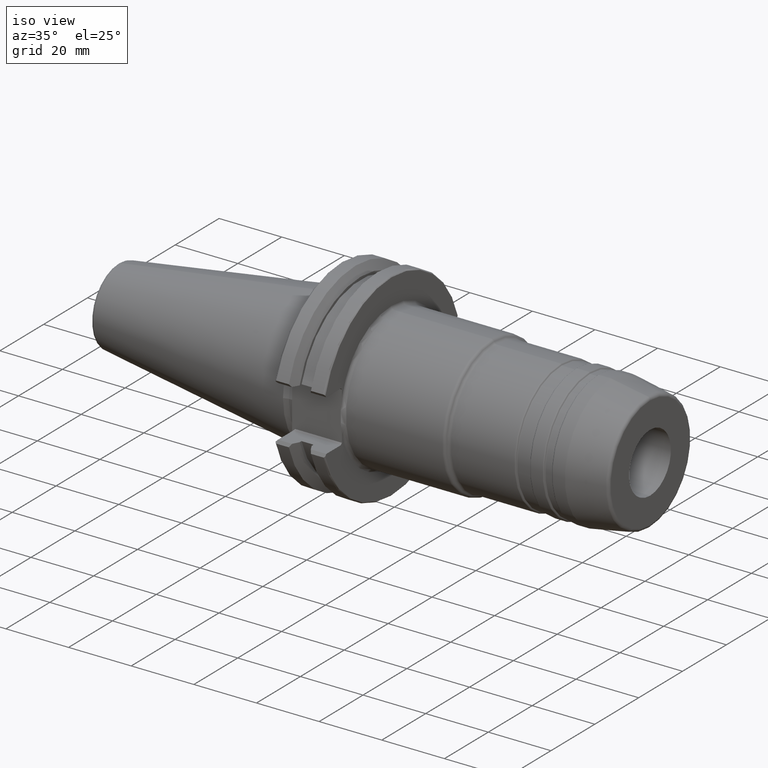
[diagram: clean part render]
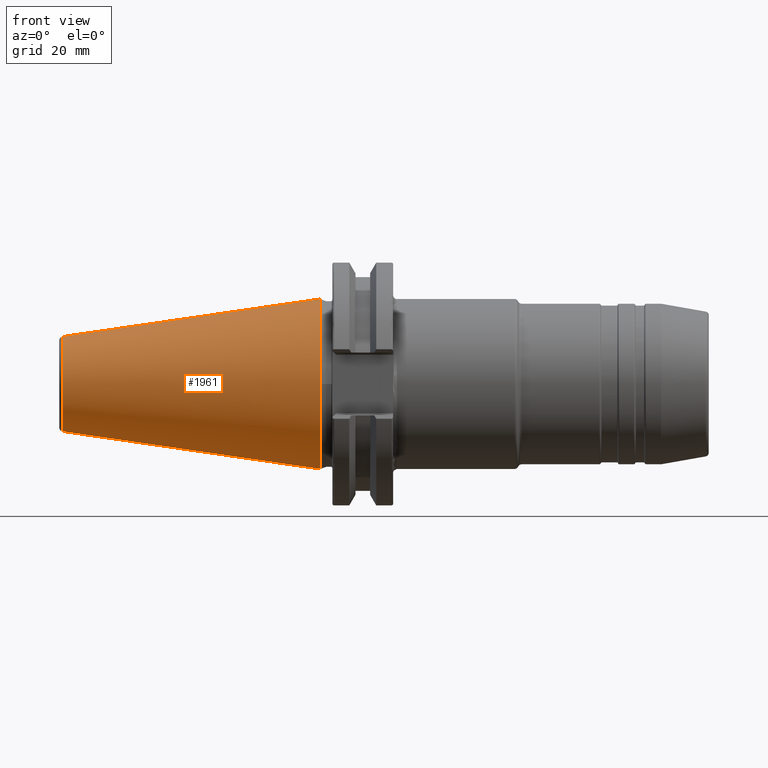
[diagram: tour spotlight — one face highlighted and labeled with its STEP entity id]
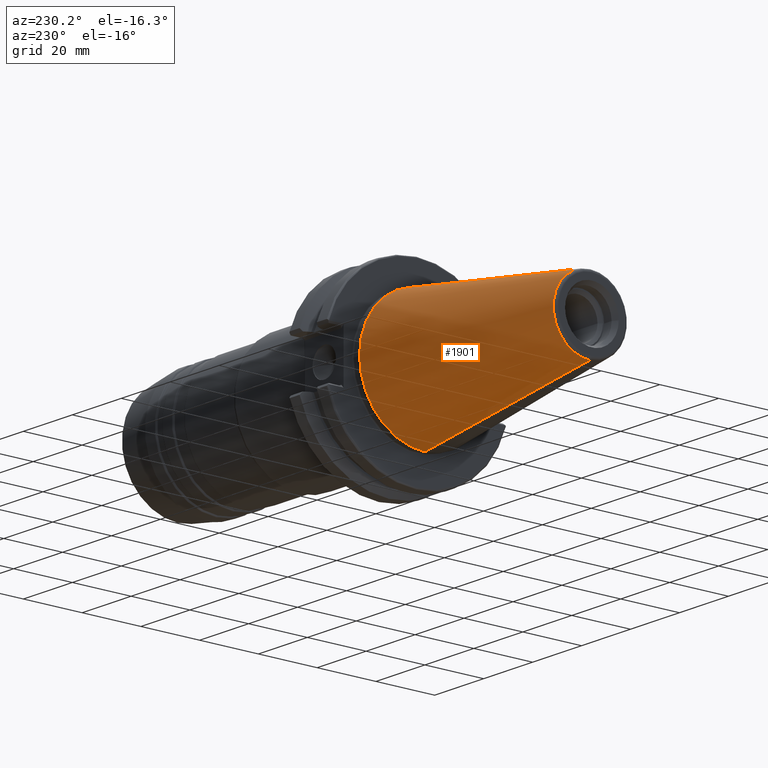
[diagram: tour spotlight — one face highlighted and labeled with its STEP entity id]
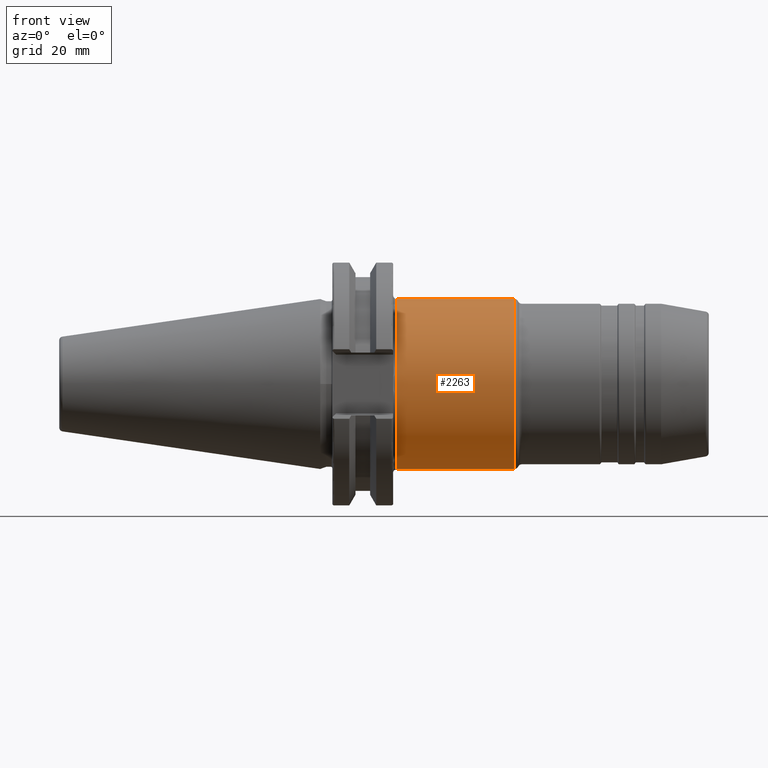
[diagram: tour spotlight — one face highlighted and labeled with its STEP entity id]
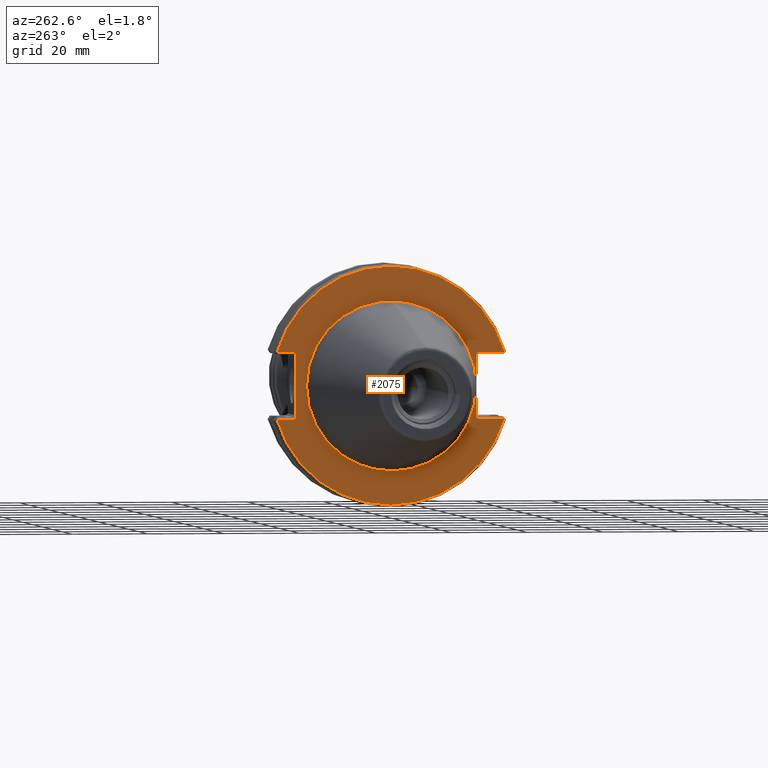
[diagram: tour spotlight — one face highlighted and labeled with its STEP entity id]
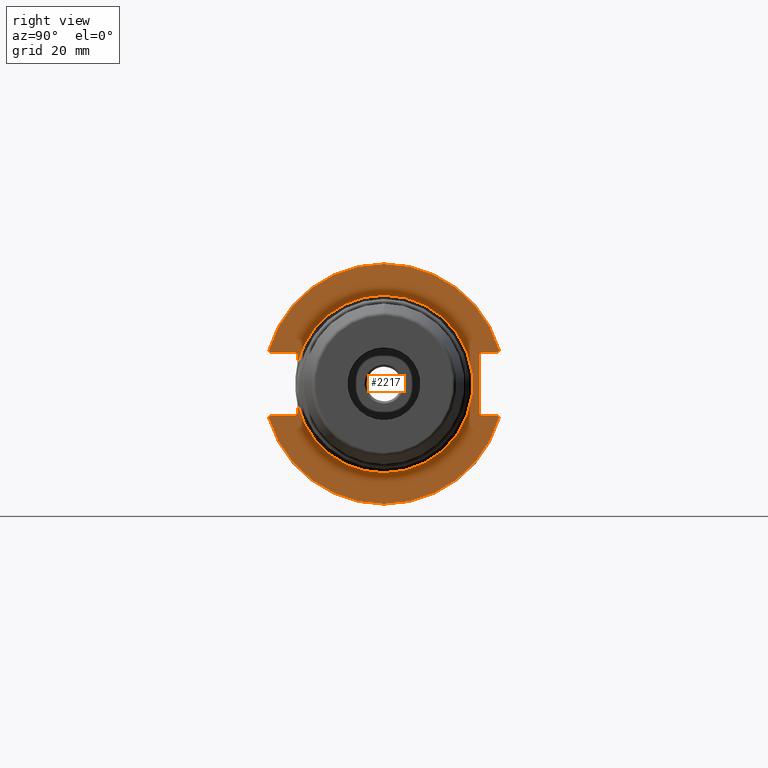
[diagram: tour spotlight — one face highlighted and labeled with its STEP entity id]
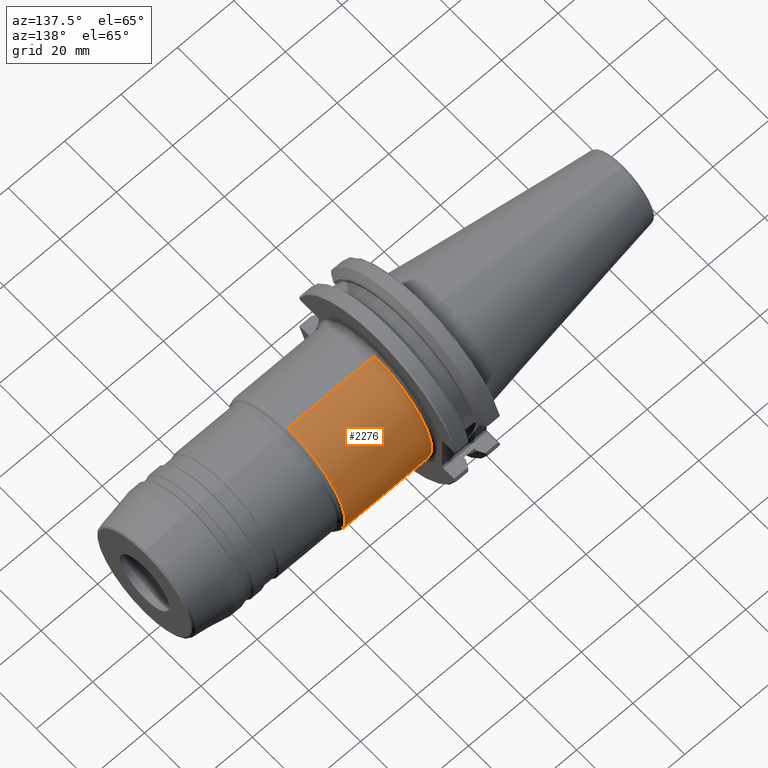
[diagram: tour spotlight — one face highlighted and labeled with its STEP entity id]
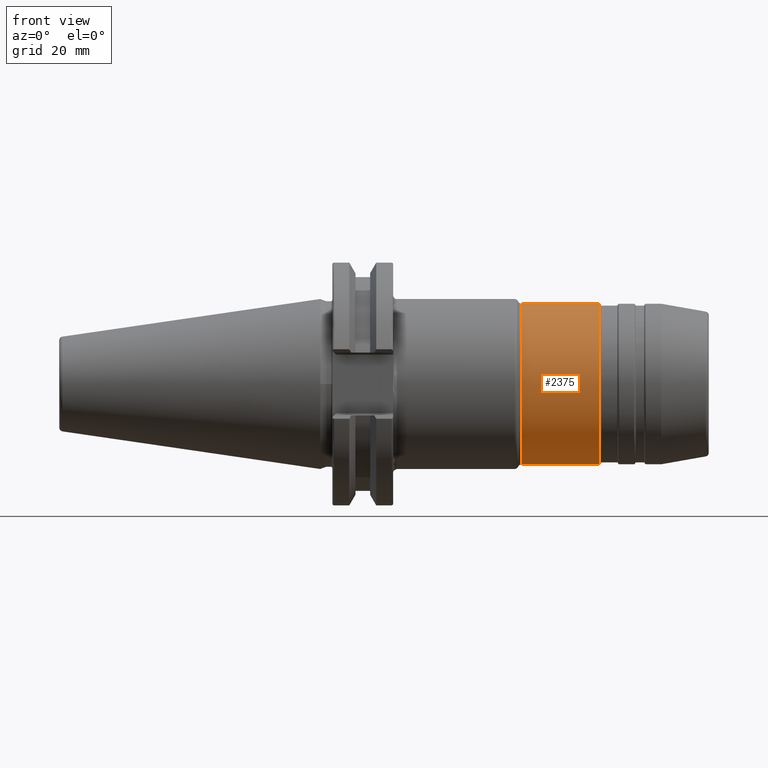
[diagram: tour spotlight — one face highlighted and labeled with its STEP entity id]
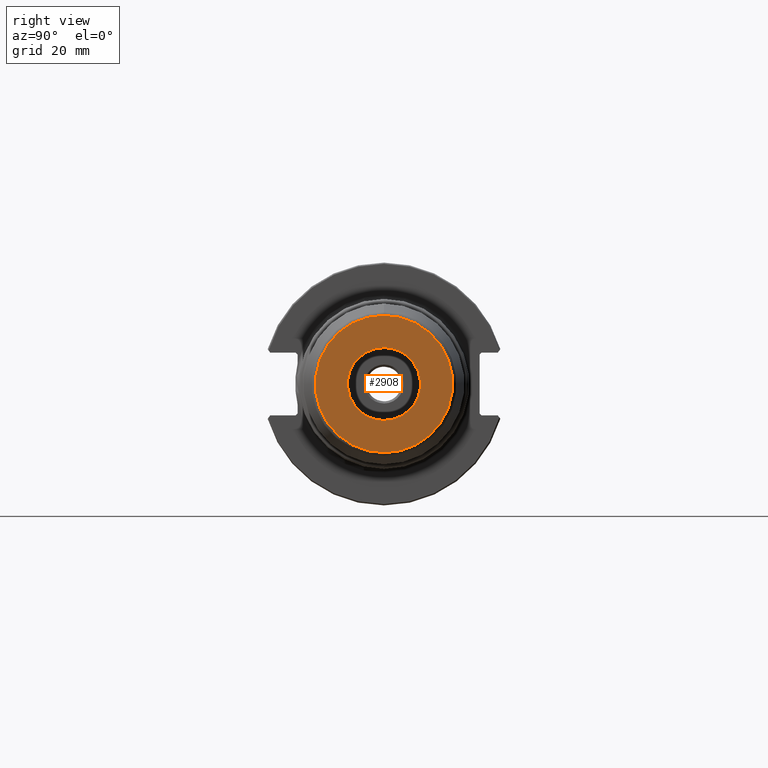
[diagram: tour spotlight — one face highlighted and labeled with its STEP entity id]
A machine part: a face-by-face anatomy tour. The part has 139 B-rep faces; the first image is the clean iso view, then the 8 largest visible faces are spotlighted one at a time (largest first), each with its STEP entity span.

Face 1 — front view, entity #1961. In plain terms, the highlighted conical surface has half-angle 8.297 deg.
Definition (entity closure, byte-faithful):
#47=CARTESIAN_POINT('',(-6.739430689359E1,0.E0,0.E0));
#48=DIRECTION('',(-1.E0,0.E0,0.E0));
#49=DIRECTION('',(0.E0,0.E0,-1.E0));
#50=AXIS2_PLACEMENT_3D('',#47,#48,#49);
#52=DIRECTION('',(-9.895329809873E-1,-1.311327178365E-12,-1.443068935927E-1));
#53=VECTOR('',#52,6.810718610546E1);
#54=CARTESIAN_POINT('',(0.E0,0.E0,2.2225E1));
#55=LINE('',#54,#53);
#56=CARTESIAN_POINT('',(2.557953848736E-13,0.E0,0.E0));
#57=DIRECTION('',(1.E0,0.E0,0.E0));
#58=DIRECTION('',(0.E0,0.E0,1.E0));
#59=AXIS2_PLACEMENT_3D('',#56,#57,#58);
#61=CARTESIAN_POINT('',(-2.842170943040E-14,0.E0,0.E0));
#62=DIRECTION('',(1.E0,0.E0,0.E0));
#63=DIRECTION('',(0.E0,-1.E0,0.E0));
#64=AXIS2_PLACEMENT_3D('',#61,#62,#63);
#66=DIRECTION('',(-9.895329809873E-1,1.311286176267E-12,1.443068935927E-1));
#67=VECTOR('',#66,6.810718610546E1);
#68=CARTESIAN_POINT('',(0.E0,0.E0,-2.2225E1));
#69=LINE('',#68,#67);
#1596=CARTESIAN_POINT('',(-6.739430689359E1,0.E0,-1.239666354178E1));
#1597=CARTESIAN_POINT('',(-6.739430689359E1,0.E0,1.239666354178E1));
#1598=VERTEX_POINT('',#1596);
#1599=VERTEX_POINT('',#1597);
#1612=CARTESIAN_POINT('',(0.E0,-2.2225E1,-1.633863832385E-8));
#1613=VERTEX_POINT('',#1612);
#1616=CARTESIAN_POINT('',(2.557953848736E-13,0.E0,2.2225E1));
#1617=VERTEX_POINT('',#1616);
#1618=CARTESIAN_POINT('',(-2.842170943040E-14,0.E0,-2.2225E1));
#1619=VERTEX_POINT('',#1618);
#1947=CARTESIAN_POINT('',(-3.369715344680E1,0.E0,0.E0));
#1948=DIRECTION('',(1.E0,0.E0,0.E0));
#1949=DIRECTION('',(0.E0,0.E0,1.E0));
#1950=AXIS2_PLACEMENT_3D('',#1947,#1948,#1949);
#1951=CONICAL_SURFACE('',#1950,1.731083177089E1,8.297145E0);
#1952=ORIENTED_EDGE('',*,*,#1941,.T.);
#1953=ORIENTED_EDGE('',*,*,#1897,.F.);
#1955=ORIENTED_EDGE('',*,*,#1954,.T.);
#1957=ORIENTED_EDGE('',*,*,#1956,.T.);
#1958=ORIENTED_EDGE('',*,*,#1891,.T.);
#1959=EDGE_LOOP('',(#1952,#1953,#1955,#1957,#1958));
#1960=FACE_OUTER_BOUND('',#1959,.F.);
#1961=ADVANCED_FACE('',(#1960),#1951,.T.);
#51=CIRCLE('',#50,1.239666354178E1);
#60=CIRCLE('',#59,2.2225E1);
#65=CIRCLE('',#64,2.2225E1);
#1891=EDGE_CURVE('',#1619,#1598,#69,.T.);
#1897=EDGE_CURVE('',#1617,#1599,#55,.T.);
#1941=EDGE_CURVE('',#1598,#1599,#51,.T.);
#1954=EDGE_CURVE('',#1617,#1613,#60,.T.);
#1956=EDGE_CURVE('',#1613,#1619,#65,.T.);

Face 2 — auxiliary view, entity #1901. In plain terms, the highlighted conical surface has half-angle 8.297 deg.
Definition (entity closure, byte-faithful):
#2=CARTESIAN_POINT('',(-6.739430689359E1,0.E0,0.E0));
#3=DIRECTION('',(-1.E0,0.E0,0.E0));
#4=DIRECTION('',(0.E0,0.E0,1.E0));
#5=AXIS2_PLACEMENT_3D('',#2,#3,#4);
#7=CARTESIAN_POINT('',(-2.842170943040E-14,0.E0,0.E0));
#8=DIRECTION('',(1.E0,0.E0,0.E0));
#9=DIRECTION('',(0.E0,0.E0,-1.E0));
#10=AXIS2_PLACEMENT_3D('',#7,#8,#9);
#12=CARTESIAN_POINT('',(2.557953848736E-13,0.E0,0.E0));
#13=DIRECTION('',(1.E0,0.E0,0.E0));
#14=DIRECTION('',(0.E0,1.E0,0.E0));
#15=AXIS2_PLACEMENT_3D('',#12,#13,#14);
#52=DIRECTION('',(-9.895329809873E-1,-1.311327178365E-12,-1.443068935927E-1));
#53=VECTOR('',#52,6.810718610546E1);
#54=CARTESIAN_POINT('',(0.E0,0.E0,2.2225E1));
#55=LINE('',#54,#53);
#66=DIRECTION('',(-9.895329809873E-1,1.311286176267E-12,1.443068935927E-1));
#67=VECTOR('',#66,6.810718610546E1);
#68=CARTESIAN_POINT('',(0.E0,0.E0,-2.2225E1));
#69=LINE('',#68,#67);
#1596=CARTESIAN_POINT('',(-6.739430689359E1,0.E0,-1.239666354178E1));
#1597=CARTESIAN_POINT('',(-6.739430689359E1,0.E0,1.239666354178E1));
#1598=VERTEX_POINT('',#1596);
#1599=VERTEX_POINT('',#1597);
#1614=CARTESIAN_POINT('',(0.E0,2.2225E1,1.633863672682E-8));
#1615=VERTEX_POINT('',#1614);
#1616=CARTESIAN_POINT('',(2.557953848736E-13,0.E0,2.2225E1));
#1617=VERTEX_POINT('',#1616);
#1618=CARTESIAN_POINT('',(-2.842170943040E-14,0.E0,-2.2225E1));
#1619=VERTEX_POINT('',#1618);
#1884=CARTESIAN_POINT('',(-3.369715344680E1,0.E0,0.E0));
#1885=DIRECTION('',(1.E0,0.E0,0.E0));
#1886=DIRECTION('',(0.E0,0.E0,1.E0));
#1887=AXIS2_PLACEMENT_3D('',#1884,#1885,#1886);
#1888=CONICAL_SURFACE('',#1887,1.731083177089E1,8.297145E0);
#1890=ORIENTED_EDGE('',*,*,#1889,.T.);
#1892=ORIENTED_EDGE('',*,*,#1891,.F.);
#1894=ORIENTED_EDGE('',*,*,#1893,.T.);
#1896=ORIENTED_EDGE('',*,*,#1895,.T.);
#1898=ORIENTED_EDGE('',*,*,#1897,.T.);
#1899=EDGE_LOOP('',(#1890,#1892,#1894,#1896,#1898));
#1900=FACE_OUTER_BOUND('',#1899,.F.);
#1901=ADVANCED_FACE('',(#1900),#1888,.T.);
#6=CIRCLE('',#5,1.239666354178E1);
#11=CIRCLE('',#10,2.2225E1);
#16=CIRCLE('',#15,2.2225E1);
#1889=EDGE_CURVE('',#1599,#1598,#6,.T.);
#1891=EDGE_CURVE('',#1619,#1598,#69,.T.);
#1893=EDGE_CURVE('',#1619,#1615,#11,.T.);
#1895=EDGE_CURVE('',#1615,#1617,#16,.T.);
#1897=EDGE_CURVE('',#1617,#1599,#55,.T.);

Face 3 — front view, entity #2263. In plain terms, the highlighted cylindrical surface (partial cylindrical patch) has radius 22.225 mm, axis along (1, 0, 0).
Definition (entity closure, byte-faithful):
#227=CARTESIAN_POINT('',(2.0075E1,0.E0,0.E0));
#228=DIRECTION('',(-1.E0,0.E0,0.E0));
#229=DIRECTION('',(0.E0,0.E0,-1.E0));
#230=AXIS2_PLACEMENT_3D('',#227,#228,#229);
#237=DIRECTION('',(-1.E0,0.E0,0.E0));
#238=VECTOR('',#237,3.076539565105E1);
#239=CARTESIAN_POINT('',(5.084039565105E1,0.E0,-2.2225E1));
#240=LINE('',#239,#238);
#241=DIRECTION('',(-1.E0,0.E0,0.E0));
#242=VECTOR('',#241,3.076539565105E1);
#243=CARTESIAN_POINT('',(5.084039565105E1,0.E0,2.2225E1));
#244=LINE('',#243,#242);
#245=CARTESIAN_POINT('',(5.084039565105E1,0.E0,0.E0));
#246=DIRECTION('',(-1.E0,0.E0,0.E0));
#247=DIRECTION('',(0.E0,0.E0,-1.E0));
#248=AXIS2_PLACEMENT_3D('',#245,#246,#247);
#1802=CARTESIAN_POINT('',(5.084039565105E1,0.E0,-2.2225E1));
#1803=VERTEX_POINT('',#1802);
#1804=CARTESIAN_POINT('',(2.0075E1,0.E0,-2.2225E1));
#1805=VERTEX_POINT('',#1804);
#1864=CARTESIAN_POINT('',(5.084039565105E1,0.E0,2.2225E1));
#1865=VERTEX_POINT('',#1864);
#1866=CARTESIAN_POINT('',(2.0075E1,0.E0,2.2225E1));
#1867=VERTEX_POINT('',#1866);
#2249=CARTESIAN_POINT('',(1.49475E1,0.E0,0.E0));
#2250=DIRECTION('',(1.E0,0.E0,0.E0));
#2251=DIRECTION('',(0.E0,0.E0,1.E0));
#2252=AXIS2_PLACEMENT_3D('',#2249,#2250,#2251);
#2253=CYLINDRICAL_SURFACE('',#2252,2.2225E1);
#2255=ORIENTED_EDGE('',*,*,#2254,.T.);
#2256=ORIENTED_EDGE('',*,*,#2240,.T.);
#2258=ORIENTED_EDGE('',*,*,#2257,.F.);
#2260=ORIENTED_EDGE('',*,*,#2259,.F.);
#2261=EDGE_LOOP('',(#2255,#2256,#2258,#2260));
#2262=FACE_OUTER_BOUND('',#2261,.F.);
#2263=ADVANCED_FACE('',(#2262),#2253,.T.);
#231=CIRCLE('',#230,2.2225E1);
#249=CIRCLE('',#248,2.2225E1);
#2240=EDGE_CURVE('',#1805,#1867,#231,.T.);
#2254=EDGE_CURVE('',#1803,#1805,#240,.T.);
#2257=EDGE_CURVE('',#1865,#1867,#244,.T.);
#2259=EDGE_CURVE('',#1803,#1865,#249,.T.);

Face 4 — auxiliary view, entity #2075. In plain terms, the highlighted planar face has unit normal (1, 0, 0).
Definition (entity closure, byte-faithful):
#116=CARTESIAN_POINT('',(3.175E0,0.E0,0.E0));
#117=DIRECTION('',(1.E0,0.E0,0.E0));
#118=DIRECTION('',(0.E0,1.E0,0.E0));
#119=AXIS2_PLACEMENT_3D('',#116,#117,#118);
#121=CARTESIAN_POINT('',(3.175E0,0.E0,0.E0));
#122=DIRECTION('',(1.E0,0.E0,0.E0));
#123=DIRECTION('',(0.E0,-1.E0,0.E0));
#124=AXIS2_PLACEMENT_3D('',#121,#122,#123);
#126=DIRECTION('',(-4.416490716681E-7,-9.999999999998E-1,-4.416327437506E-7));
#127=VECTOR('',#126,5.017433816154E0);
#128=CARTESIAN_POINT('',(3.175002215945E0,3.001743381615E1,8.690002215863E0));
#129=LINE('',#128,#127);
#130=DIRECTION('',(2.987481982108E-7,-9.999999999999E-1,2.987371537468E-7));
#131=VECTOR('',#130,7.417433816239E0);
#132=CARTESIAN_POINT('',(3.175E0,-2.26E1,8.69E0));
#133=LINE('',#132,#131);
#134=DIRECTION('',(-2.987481980911E-7,9.999999999999E-1,2.987371530284E-7));
#135=VECTOR('',#134,7.417433816238E0);
#136=CARTESIAN_POINT('',(3.175002215945E0,-3.001743381624E1,-8.690002215863E0));
#137=LINE('',#136,#135);
#138=DIRECTION('',(4.416490717585E-7,9.999999999998E-1,-4.416327437526E-7));
#139=VECTOR('',#138,5.017433816133E0);
#140=CARTESIAN_POINT('',(3.175E0,2.5E1,-8.69E0));
#141=LINE('',#140,#139);
#168=DIRECTION('',(0.E0,0.E0,-1.E0));
#169=VECTOR('',#168,1.738E1);
#170=CARTESIAN_POINT('',(3.175E0,2.5E1,8.69E0));
#171=LINE('',#170,#169);
#920=DIRECTION('',(0.E0,0.E0,1.E0));
#921=VECTOR('',#920,1.738E1);
#922=CARTESIAN_POINT('',(3.175E0,-2.26E1,-8.69E0));
#923=LINE('',#922,#921);
#1046=CARTESIAN_POINT('',(3.175E0,0.E0,0.E0));
#1047=DIRECTION('',(-1.E0,0.E0,0.E0));
#1048=DIRECTION('',(0.E0,9.605579196518E-1,-2.780799938762E-1));
#1049=AXIS2_PLACEMENT_3D('',#1046,#1047,#1048);
#1118=CARTESIAN_POINT('',(3.175E0,0.E0,0.E0));
#1119=DIRECTION('',(-1.E0,0.E0,0.E0));
#1120=DIRECTION('',(0.E0,-9.605579196529E-1,2.780799938725E-1));
#1121=AXIS2_PLACEMENT_3D('',#1118,#1119,#1120);
#1604=CARTESIAN_POINT('',(3.175E0,2.22E1,0.E0));
#1605=CARTESIAN_POINT('',(3.175E0,-2.22E1,0.E0));
#1606=VERTEX_POINT('',#1604);
#1607=VERTEX_POINT('',#1605);
#1660=CARTESIAN_POINT('',(3.175002215945E0,3.001743381615E1,8.690002215863E0));
#1661=CARTESIAN_POINT('',(3.175E0,2.5E1,8.69E0));
#1662=VERTEX_POINT('',#1660);
#1663=VERTEX_POINT('',#1661);
#1668=CARTESIAN_POINT('',(3.175E0,2.5E1,-8.69E0));
#1669=CARTESIAN_POINT('',(3.175002215945E0,3.001743381613E1,-8.690002215863E0));
#1670=VERTEX_POINT('',#1668);
#1671=VERTEX_POINT('',#1669);
#1676=CARTESIAN_POINT('',(3.175E0,-2.26E1,8.69E0));
#1677=CARTESIAN_POINT('',(3.175002215945E0,-3.001743381624E1,8.690002215863E0));
#1678=VERTEX_POINT('',#1676);
#1679=VERTEX_POINT('',#1677);
#1684=CARTESIAN_POINT('',(3.175002215945E0,-3.001743381624E1,
-8.690002215863E0));
#1685=CARTESIAN_POINT('',(3.175E0,-2.26E1,-8.69E0));
#1686=VERTEX_POINT('',#1684);
#1687=VERTEX_POINT('',#1685);
#2048=CARTESIAN_POINT('',(3.175E0,0.E0,0.E0));
#2049=DIRECTION('',(1.E0,0.E0,0.E0));
#2050=DIRECTION('',(0.E0,0.E0,1.E0));
#2051=AXIS2_PLACEMENT_3D('',#2048,#2049,#2050);
#2052=PLANE('',#2051);
#2054=ORIENTED_EDGE('',*,*,#2053,.F.);
#2056=ORIENTED_EDGE('',*,*,#2055,.F.);
#2058=ORIENTED_EDGE('',*,*,#2057,.F.);
#2060=ORIENTED_EDGE('',*,*,#2059,.F.);
#2062=ORIENTED_EDGE('',*,*,#2061,.F.);
#2064=ORIENTED_EDGE('',*,*,#2063,.F.);
#2066=ORIENTED_EDGE('',*,*,#2065,.F.);
#2068=ORIENTED_EDGE('',*,*,#2067,.F.);
#2069=EDGE_LOOP('',(#2054,#2056,#2058,#2060,#2062,#2064,#2066,#2068));
#2070=FACE_OUTER_BOUND('',#2069,.F.);
#2071=ORIENTED_EDGE('',*,*,#2001,.F.);
#2072=ORIENTED_EDGE('',*,*,#2016,.F.);
#2073=EDGE_LOOP('',(#2071,#2072));
#2074=FACE_BOUND('',#2073,.F.);
#2075=ADVANCED_FACE('',(#2070,#2074),#2052,.F.);
#120=CIRCLE('',#119,2.22E1);
#125=CIRCLE('',#124,2.22E1);
#1050=CIRCLE('',#1049,3.125E1);
#1122=CIRCLE('',#1121,3.125E1);
#2001=EDGE_CURVE('',#1606,#1607,#120,.T.);
#2016=EDGE_CURVE('',#1607,#1606,#125,.T.);
#2053=EDGE_CURVE('',#1662,#1663,#129,.T.);
#2055=EDGE_CURVE('',#1679,#1662,#1122,.T.);
#2057=EDGE_CURVE('',#1678,#1679,#133,.T.);
#2059=EDGE_CURVE('',#1687,#1678,#923,.T.);
#2061=EDGE_CURVE('',#1686,#1687,#137,.T.);
#2063=EDGE_CURVE('',#1671,#1686,#1050,.T.);
#2065=EDGE_CURVE('',#1670,#1671,#141,.T.);
#2067=EDGE_CURVE('',#1663,#1670,#171,.T.);

Face 5 — right view, entity #2217. In plain terms, the highlighted planar face has unit normal (-1, 0, 0).
Definition (entity closure, byte-faithful):
#160=DIRECTION('',(0.E0,0.E0,-1.E0));
#161=VECTOR('',#160,1.538E1);
#162=CARTESIAN_POINT('',(1.9075E1,2.5E1,7.69E0));
#163=LINE('',#162,#161);
#202=CARTESIAN_POINT('',(1.9075E1,0.E0,0.E0));
#203=DIRECTION('',(1.E0,0.E0,0.E0));
#204=DIRECTION('',(0.E0,0.E0,-1.E0));
#205=AXIS2_PLACEMENT_3D('',#202,#203,#204);
#207=CARTESIAN_POINT('',(1.9075E1,0.E0,0.E0));
#208=DIRECTION('',(1.E0,0.E0,0.E0));
#209=DIRECTION('',(0.E0,0.E0,1.E0));
#210=AXIS2_PLACEMENT_3D('',#207,#208,#209);
#212=CARTESIAN_POINT('',(1.9075E1,0.E0,0.E0));
#213=DIRECTION('',(1.E0,0.E0,0.E0));
#214=DIRECTION('',(0.E0,-9.730893433800E-1,-2.304281445491E-1));
#215=AXIS2_PLACEMENT_3D('',#212,#213,#214);
#912=DIRECTION('',(3.950318825048E-14,0.E0,-1.E0));
#913=VECTOR('',#912,2.338306342848E0);
#914=CARTESIAN_POINT('',(1.9075E1,-2.26E1,-5.351693657152E0));
#915=LINE('',#914,#913);
#928=DIRECTION('',(-4.102254164473E-14,0.E0,-1.E0));
#929=VECTOR('',#928,2.338306342848E0);
#930=CARTESIAN_POINT('',(1.9075E1,-2.26E1,7.69E0));
#931=LINE('',#930,#929);
#932=DIRECTION('',(0.E0,-7.071067811865E-1,-7.071067811865E-1));
#933=VECTOR('',#932,7.071067811865E-1);
#934=CARTESIAN_POINT('',(1.9075E1,-2.26E1,-7.69E0));
#935=LINE('',#934,#933);
#940=DIRECTION('',(0.E0,1.E0,0.E0));
#941=VECTOR('',#940,6.650132772813E0);
#942=CARTESIAN_POINT('',(1.9075E1,-2.975013277281E1,-8.19E0));
#943=LINE('',#942,#941);
#960=DIRECTION('',(0.E0,-5.973640433789E-1,-8.019701987468E-1));
#961=VECTOR('',#960,6.967374391763E-1);
#962=CARTESIAN_POINT('',(1.9075E1,-2.975013277281E1,-8.19E0));
#963=LINE('',#962,#961);
#971=CARTESIAN_POINT('',(1.9075E1,0.E0,0.E0));
#972=DIRECTION('',(1.E0,0.E0,0.E0));
#973=DIRECTION('',(0.E0,-9.604246720989E-1,-2.785398521286E-1));
#974=AXIS2_PLACEMENT_3D('',#971,#972,#973);
#993=DIRECTION('',(0.E0,-5.973640433790E-1,8.019701987468E-1));
#994=VECTOR('',#993,6.967374391763E-1);
#995=CARTESIAN_POINT('',(1.9075E1,3.016633866665E1,-8.748762662571E0));
#996=LINE('',#995,#994);
#1004=DIRECTION('',(0.E0,1.E0,0.E0));
#1005=VECTOR('',#1004,4.250132772813E0);
#1006=CARTESIAN_POINT('',(1.9075E1,2.55E1,-8.19E0));
#1007=LINE('',#1006,#1005);
#1024=DIRECTION('',(0.E0,7.071067811865E-1,-7.071067811866E-1));
#1025=VECTOR('',#1024,7.071067811866E-1);
#1026=CARTESIAN_POINT('',(1.9075E1,2.5E1,-7.69E0));
#1027=LINE('',#1026,#1025);
#1160=DIRECTION('',(0.E0,1.E0,0.E0));
#1161=VECTOR('',#1160,6.650132772813E0);
#1162=CARTESIAN_POINT('',(1.9075E1,-2.975013277281E1,8.19E0));
#1163=LINE('',#1162,#1161);
#1180=DIRECTION('',(0.E0,-7.071067811865E-1,7.071067811865E-1));
#1181=VECTOR('',#1180,7.071067811865E-1);
#1182=CARTESIAN_POINT('',(1.9075E1,-2.26E1,7.69E0));
#1183=LINE('',#1182,#1181);
#1278=DIRECTION('',(0.E0,1.E0,0.E0));
#1279=VECTOR('',#1278,4.250132772813E0);
#1280=CARTESIAN_POINT('',(1.9075E1,2.55E1,8.19E0));
#1281=LINE('',#1280,#1279);
#1298=DIRECTION('',(0.E0,5.973640433790E-1,8.019701987468E-1));
#1299=VECTOR('',#1298,6.967374391763E-1);
#1300=CARTESIAN_POINT('',(1.9075E1,2.975013277281E1,8.19E0));
#1301=LINE('',#1300,#1299);
#1309=CARTESIAN_POINT('',(1.9075E1,0.E0,0.E0));
#1310=DIRECTION('',(1.E0,0.E0,0.E0));
#1311=DIRECTION('',(0.E0,9.604246720989E-1,2.785398521286E-1));
#1312=AXIS2_PLACEMENT_3D('',#1309,#1310,#1311);
#1331=DIRECTION('',(0.E0,5.973640433790E-1,-8.019701987468E-1));
#1332=VECTOR('',#1331,6.967374391763E-1);
#1333=CARTESIAN_POINT('',(1.9075E1,-3.016633866665E1,8.748762662571E0));
#1334=LINE('',#1333,#1332);
#1487=DIRECTION('',(0.E0,7.071067811865E-1,7.071067811865E-1));
#1488=VECTOR('',#1487,7.071067811865E-1);
#1489=CARTESIAN_POINT('',(1.9075E1,2.5E1,7.69E0));
#1490=LINE('',#1489,#1488);
#1708=CARTESIAN_POINT('',(1.9075E1,2.5E1,7.69E0));
#1709=CARTESIAN_POINT('',(1.9075E1,2.5E1,-7.69E0));
#1710=VERTEX_POINT('',#1708);
#1711=VERTEX_POINT('',#1709);
#1712=CARTESIAN_POINT('',(1.9075E1,2.55E1,8.19E0));
#1713=CARTESIAN_POINT('',(1.9075E1,2.975013277281E1,8.19E0));
#1714=VERTEX_POINT('',#1712);
#1715=VERTEX_POINT('',#1713);
#1716=CARTESIAN_POINT('',(1.9075E1,2.55E1,-8.19E0));
#1717=CARTESIAN_POINT('',(1.9075E1,2.975013277281E1,-8.19E0));
#1718=VERTEX_POINT('',#1716);
#1719=VERTEX_POINT('',#1717);
#1720=CARTESIAN_POINT('',(1.9075E1,-2.975013277281E1,8.19E0));
#1721=CARTESIAN_POINT('',(1.9075E1,-2.31E1,8.19E0));
#1722=VERTEX_POINT('',#1720);
#1723=VERTEX_POINT('',#1721);
#1724=CARTESIAN_POINT('',(1.9075E1,-2.975013277281E1,-8.19E0));
#1725=CARTESIAN_POINT('',(1.9075E1,-2.31E1,-8.19E0));
#1726=VERTEX_POINT('',#1724);
#1727=VERTEX_POINT('',#1725);
#1728=CARTESIAN_POINT('',(1.9075E1,3.016633866665E1,8.748762662570E0));
#1729=VERTEX_POINT('',#1728);
#1730=CARTESIAN_POINT('',(1.9075E1,3.016633866665E1,-8.748762662571E0));
#1731=VERTEX_POINT('',#1730);
#1732=CARTESIAN_POINT('',(1.9075E1,-3.016633866665E1,8.748762662571E0));
#1733=VERTEX_POINT('',#1732);
#1734=CARTESIAN_POINT('',(1.9075E1,-3.016633866665E1,-8.748762662571E0));
#1735=VERTEX_POINT('',#1734);
#1736=CARTESIAN_POINT('',(1.9075E1,-2.26E1,-7.69E0));
#1737=VERTEX_POINT('',#1736);
#1738=CARTESIAN_POINT('',(1.9075E1,-2.26E1,7.69E0));
#1739=VERTEX_POINT('',#1738);
#1868=CARTESIAN_POINT('',(1.9075E1,-2.26E1,5.351693657152E0));
#1869=CARTESIAN_POINT('',(1.9075E1,-2.26E1,-5.351693657152E0));
#1870=VERTEX_POINT('',#1868);
#1871=VERTEX_POINT('',#1869);
#1876=CARTESIAN_POINT('',(1.9075E1,0.E0,-2.3225E1));
#1877=CARTESIAN_POINT('',(1.9075E1,0.E0,2.3225E1));
#1878=VERTEX_POINT('',#1876);
#1879=VERTEX_POINT('',#1877);
#2171=CARTESIAN_POINT('',(1.9075E1,-5.E1,-5.E1));
#2172=DIRECTION('',(-1.E0,0.E0,0.E0));
#2173=DIRECTION('',(0.E0,0.E0,1.E0));
#2174=AXIS2_PLACEMENT_3D('',#2171,#2172,#2173);
#2175=PLANE('',#2174);
#2177=ORIENTED_EDGE('',*,*,#2176,.T.);
#2179=ORIENTED_EDGE('',*,*,#2178,.T.);
#2181=ORIENTED_EDGE('',*,*,#2180,.F.);
#2183=ORIENTED_EDGE('',*,*,#2182,.T.);
#2185=ORIENTED_EDGE('',*,*,#2184,.F.);
#2187=ORIENTED_EDGE('',*,*,#2186,.F.);
#2189=ORIENTED_EDGE('',*,*,#2188,.F.);
#2191=ORIENTED_EDGE('',*,*,#2190,.F.);
#2193=ORIENTED_EDGE('',*,*,#2192,.F.);
#2195=ORIENTED_EDGE('',*,*,#2194,.F.);
#2196=ORIENTED_EDGE('',*,*,#2100,.T.);
#2198=ORIENTED_EDGE('',*,*,#2197,.T.);
#2200=ORIENTED_EDGE('',*,*,#2199,.T.);
#2202=ORIENTED_EDGE('',*,*,#2201,.F.);
#2204=ORIENTED_EDGE('',*,*,#2203,.F.);
#2206=ORIENTED_EDGE('',*,*,#2205,.F.);
#2208=ORIENTED_EDGE('',*,*,#2207,.T.);
#2210=ORIENTED_EDGE('',*,*,#2209,.F.);
#2212=ORIENTED_EDGE('',*,*,#2211,.F.);
#2214=ORIENTED_EDGE('',*,*,#2213,.T.);
#2215=EDGE_LOOP('',(#2177,#2179,#2181,#2183,#2185,#2187,#2189,#2191,#2193,#2195,
#2196,#2198,#2200,#2202,#2204,#2206,#2208,#2210,#2212,#2214));
#2216=FACE_OUTER_BOUND('',#2215,.F.);
#2217=ADVANCED_FACE('',(#2216),#2175,.F.);
#206=CIRCLE('',#205,2.3225E1);
#211=CIRCLE('',#210,2.322500006557E1);
#216=CIRCLE('',#215,2.322500006584E1);
#975=CIRCLE('',#974,3.140937498068E1);
#1313=CIRCLE('',#1312,3.140937498068E1);
#2100=EDGE_CURVE('',#1710,#1711,#163,.T.);
#2176=EDGE_CURVE('',#1878,#1879,#206,.T.);
#2178=EDGE_CURVE('',#1879,#1870,#211,.T.);
#2180=EDGE_CURVE('',#1739,#1870,#931,.T.);
#2182=EDGE_CURVE('',#1739,#1723,#1183,.T.);
#2184=EDGE_CURVE('',#1722,#1723,#1163,.T.);
#2186=EDGE_CURVE('',#1733,#1722,#1334,.T.);
#2188=EDGE_CURVE('',#1729,#1733,#1313,.T.);
#2190=EDGE_CURVE('',#1715,#1729,#1301,.T.);
#2192=EDGE_CURVE('',#1714,#1715,#1281,.T.);
#2194=EDGE_CURVE('',#1710,#1714,#1490,.T.);
#2197=EDGE_CURVE('',#1711,#1718,#1027,.T.);
#2199=EDGE_CURVE('',#1718,#1719,#1007,.T.);
#2201=EDGE_CURVE('',#1731,#1719,#996,.T.);
#2203=EDGE_CURVE('',#1735,#1731,#975,.T.);
#2205=EDGE_CURVE('',#1726,#1735,#963,.T.);
#2207=EDGE_CURVE('',#1726,#1727,#943,.T.);
#2209=EDGE_CURVE('',#1737,#1727,#935,.T.);
#2211=EDGE_CURVE('',#1871,#1737,#915,.T.);
#2213=EDGE_CURVE('',#1871,#1878,#216,.T.);

Face 6 — auxiliary view, entity #2276. In plain terms, the highlighted cylindrical surface (partial cylindrical patch) has radius 22.225 mm, axis along (1, 0, 0).
Definition (entity closure, byte-faithful):
#217=CARTESIAN_POINT('',(2.0075E1,0.E0,0.E0));
#218=DIRECTION('',(1.E0,0.E0,0.E0));
#219=DIRECTION('',(0.E0,0.E0,-1.E0));
#220=AXIS2_PLACEMENT_3D('',#217,#218,#219);
#237=DIRECTION('',(-1.E0,0.E0,0.E0));
#238=VECTOR('',#237,3.076539565105E1);
#239=CARTESIAN_POINT('',(5.084039565105E1,0.E0,-2.2225E1));
#240=LINE('',#239,#238);
#241=DIRECTION('',(-1.E0,0.E0,0.E0));
#242=VECTOR('',#241,3.076539565105E1);
#243=CARTESIAN_POINT('',(5.084039565105E1,0.E0,2.2225E1));
#244=LINE('',#243,#242);
#250=CARTESIAN_POINT('',(5.084039565105E1,0.E0,0.E0));
#251=DIRECTION('',(1.E0,0.E0,0.E0));
#252=DIRECTION('',(0.E0,0.E0,-1.E0));
#253=AXIS2_PLACEMENT_3D('',#250,#251,#252);
#1802=CARTESIAN_POINT('',(5.084039565105E1,0.E0,-2.2225E1));
#1803=VERTEX_POINT('',#1802);
#1804=CARTESIAN_POINT('',(2.0075E1,0.E0,-2.2225E1));
#1805=VERTEX_POINT('',#1804);
#1864=CARTESIAN_POINT('',(5.084039565105E1,0.E0,2.2225E1));
#1865=VERTEX_POINT('',#1864);
#1866=CARTESIAN_POINT('',(2.0075E1,0.E0,2.2225E1));
#1867=VERTEX_POINT('',#1866);
#2264=CARTESIAN_POINT('',(1.49475E1,0.E0,0.E0));
#2265=DIRECTION('',(1.E0,0.E0,0.E0));
#2266=DIRECTION('',(0.E0,0.E0,1.E0));
#2267=AXIS2_PLACEMENT_3D('',#2264,#2265,#2266);
#2268=CYLINDRICAL_SURFACE('',#2267,2.2225E1);
#2269=ORIENTED_EDGE('',*,*,#2254,.F.);
#2271=ORIENTED_EDGE('',*,*,#2270,.T.);
#2272=ORIENTED_EDGE('',*,*,#2257,.T.);
#2273=ORIENTED_EDGE('',*,*,#2226,.F.);
#2274=EDGE_LOOP('',(#2269,#2271,#2272,#2273));
#2275=FACE_OUTER_BOUND('',#2274,.F.);
#2276=ADVANCED_FACE('',(#2275),#2268,.T.);
#221=CIRCLE('',#220,2.2225E1);
#254=CIRCLE('',#253,2.2225E1);
#2226=EDGE_CURVE('',#1805,#1867,#221,.T.);
#2254=EDGE_CURVE('',#1803,#1805,#240,.T.);
#2257=EDGE_CURVE('',#1865,#1867,#244,.T.);
#2270=EDGE_CURVE('',#1803,#1865,#254,.T.);

Face 7 — front view, entity #2375. In plain terms, the highlighted cylindrical surface (partial cylindrical patch) has radius 21 mm, axis along (1, 0, 0).
Definition (entity closure, byte-faithful):
#308=CARTESIAN_POINT('',(5.270235026919E1,0.E0,0.E0));
#309=DIRECTION('',(-1.E0,0.E0,0.E0));
#310=DIRECTION('',(0.E0,0.E0,-1.E0));
#311=AXIS2_PLACEMENT_3D('',#308,#309,#310);
#313=DIRECTION('',(-1.E0,0.E0,0.E0));
#314=VECTOR('',#313,2.028756443470E1);
#315=CARTESIAN_POINT('',(7.298991470389E1,0.E0,-2.1E1));
#316=LINE('',#315,#314);
#317=DIRECTION('',(-1.E0,0.E0,0.E0));
#318=VECTOR('',#317,2.028756443470E1);
#319=CARTESIAN_POINT('',(7.298991470389E1,0.E0,2.1E1));
#320=LINE('',#319,#318);
#321=CARTESIAN_POINT('',(7.298991470389E1,0.E0,0.E0));
#322=DIRECTION('',(-1.E0,0.E0,0.E0));
#323=DIRECTION('',(0.E0,0.E0,-1.E0));
#324=AXIS2_PLACEMENT_3D('',#321,#322,#323);
#1794=CARTESIAN_POINT('',(7.298991470389E1,0.E0,-2.1E1));
#1795=VERTEX_POINT('',#1794);
#1796=CARTESIAN_POINT('',(5.270235026919E1,0.E0,-2.1E1));
#1797=VERTEX_POINT('',#1796);
#1856=CARTESIAN_POINT('',(7.298991470389E1,0.E0,2.1E1));
#1857=VERTEX_POINT('',#1856);
#1858=CARTESIAN_POINT('',(5.270235026919E1,0.E0,2.1E1));
#1859=VERTEX_POINT('',#1858);
#2361=CARTESIAN_POINT('',(1.49475E1,0.E0,0.E0));
#2362=DIRECTION('',(1.E0,0.E0,0.E0));
#2363=DIRECTION('',(0.E0,0.E0,1.E0));
#2364=AXIS2_PLACEMENT_3D('',#2361,#2362,#2363);
#2365=CYLINDRICAL_SURFACE('',#2364,2.1E1);
#2367=ORIENTED_EDGE('',*,*,#2366,.T.);
#2368=ORIENTED_EDGE('',*,*,#2356,.T.);
#2370=ORIENTED_EDGE('',*,*,#2369,.F.);
#2372=ORIENTED_EDGE('',*,*,#2371,.F.);
#2373=EDGE_LOOP('',(#2367,#2368,#2370,#2372));
#2374=FACE_OUTER_BOUND('',#2373,.F.);
#2375=ADVANCED_FACE('',(#2374),#2365,.T.);
#312=CIRCLE('',#311,2.1E1);
#325=CIRCLE('',#324,2.1E1);
#2356=EDGE_CURVE('',#1797,#1859,#312,.T.);
#2366=EDGE_CURVE('',#1795,#1797,#316,.T.);
#2369=EDGE_CURVE('',#1857,#1859,#320,.T.);
#2371=EDGE_CURVE('',#1795,#1857,#325,.T.);

Face 8 — right view, entity #2908. In plain terms, the highlighted planar face has unit normal (1, 0, 0).
Definition (entity closure, byte-faithful):
#663=CARTESIAN_POINT('',(1.01625E2,0.E0,0.E0));
#664=DIRECTION('',(-1.E0,0.E0,0.E0));
#665=DIRECTION('',(0.E0,0.E0,-1.E0));
#666=AXIS2_PLACEMENT_3D('',#663,#664,#665);
#668=CARTESIAN_POINT('',(1.01625E2,0.E0,0.E0));
#669=DIRECTION('',(1.E0,0.E0,0.E0));
#670=DIRECTION('',(0.E0,0.E0,-1.E0));
#671=AXIS2_PLACEMENT_3D('',#668,#669,#670);
#673=CARTESIAN_POINT('',(1.01625E2,0.E0,0.E0));
#674=DIRECTION('',(-1.E0,0.E0,0.E0));
#675=DIRECTION('',(0.E0,0.E0,-1.E0));
#676=AXIS2_PLACEMENT_3D('',#673,#674,#675);
#678=CARTESIAN_POINT('',(1.01625E2,0.E0,0.E0));
#679=DIRECTION('',(1.E0,0.E0,0.E0));
#680=DIRECTION('',(0.E0,0.E0,-1.E0));
#681=AXIS2_PLACEMENT_3D('',#678,#679,#680);
#1755=CARTESIAN_POINT('',(1.01625E2,0.E0,-9.525E0));
#1757=VERTEX_POINT('',#1755);
#1758=CARTESIAN_POINT('',(1.01625E2,0.E0,-1.796090036882E1));
#1760=VERTEX_POINT('',#1758);
#1817=CARTESIAN_POINT('',(1.01625E2,0.E0,9.525E0));
#1819=VERTEX_POINT('',#1817);
#1820=CARTESIAN_POINT('',(1.01625E2,0.E0,1.796090036882E1));
#1822=VERTEX_POINT('',#1820);
#2893=CARTESIAN_POINT('',(1.01625E2,0.E0,0.E0));
#2894=DIRECTION('',(1.E0,0.E0,0.E0));
#2895=DIRECTION('',(0.E0,0.E0,1.E0));
#2896=AXIS2_PLACEMENT_3D('',#2893,#2894,#2895);
#2897=PLANE('',#2896);
#2898=ORIENTED_EDGE('',*,*,#2886,.F.);
#2899=ORIENTED_EDGE('',*,*,#2875,.T.);
#2900=EDGE_LOOP('',(#2898,#2899));
#2901=FACE_OUTER_BOUND('',#2900,.F.);
#2903=ORIENTED_EDGE('',*,*,#2902,.F.);
#2905=ORIENTED_EDGE('',*,*,#2904,.T.);
#2906=EDGE_LOOP('',(#2903,#2905));
#2907=FACE_BOUND('',#2906,.F.);
#2908=ADVANCED_FACE('',(#2901,#2907),#2897,.T.);
#667=CIRCLE('',#666,1.796090036882E1);
#672=CIRCLE('',#671,1.796090036882E1);
#677=CIRCLE('',#676,9.525E0);
#682=CIRCLE('',#681,9.525E0);
#2875=EDGE_CURVE('',#1760,#1822,#667,.T.);
#2886=EDGE_CURVE('',#1760,#1822,#672,.T.);
#2902=EDGE_CURVE('',#1757,#1819,#677,.T.);
#2904=EDGE_CURVE('',#1757,#1819,#682,.T.);